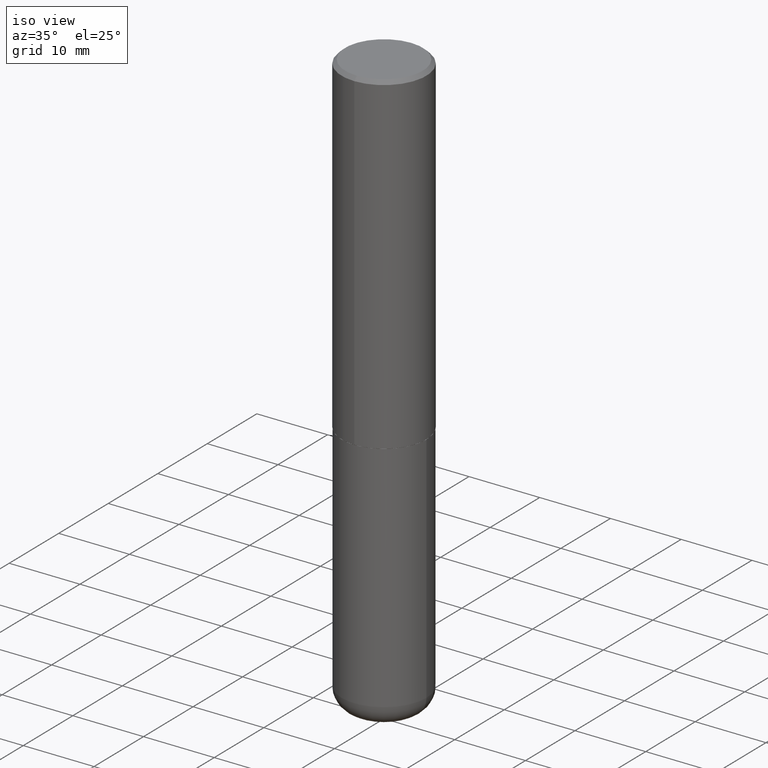
[diagram: clean part render]
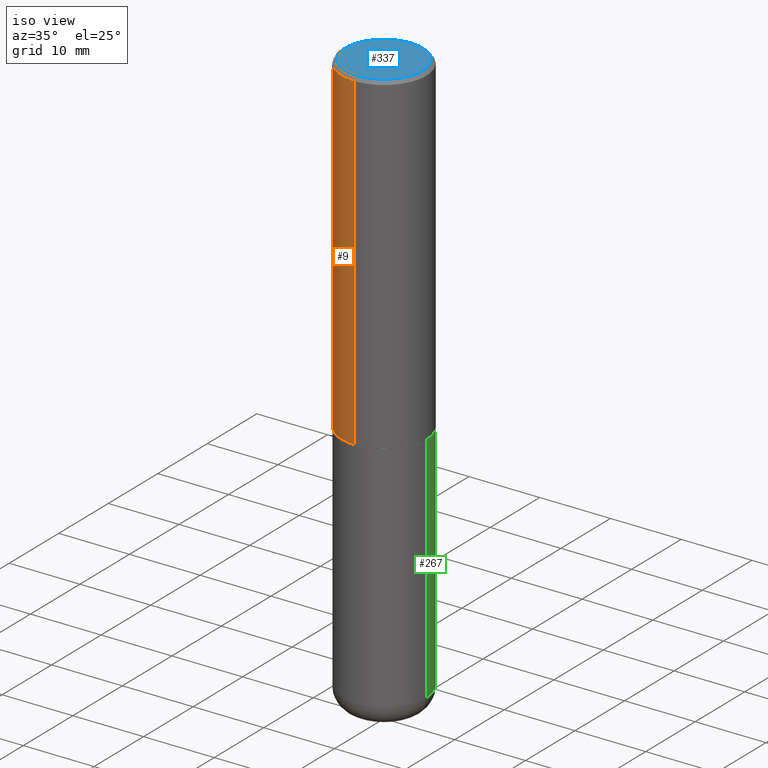
[diagram: same view with three faces highlighted in distinct colors, each labeled with its STEP entity id]
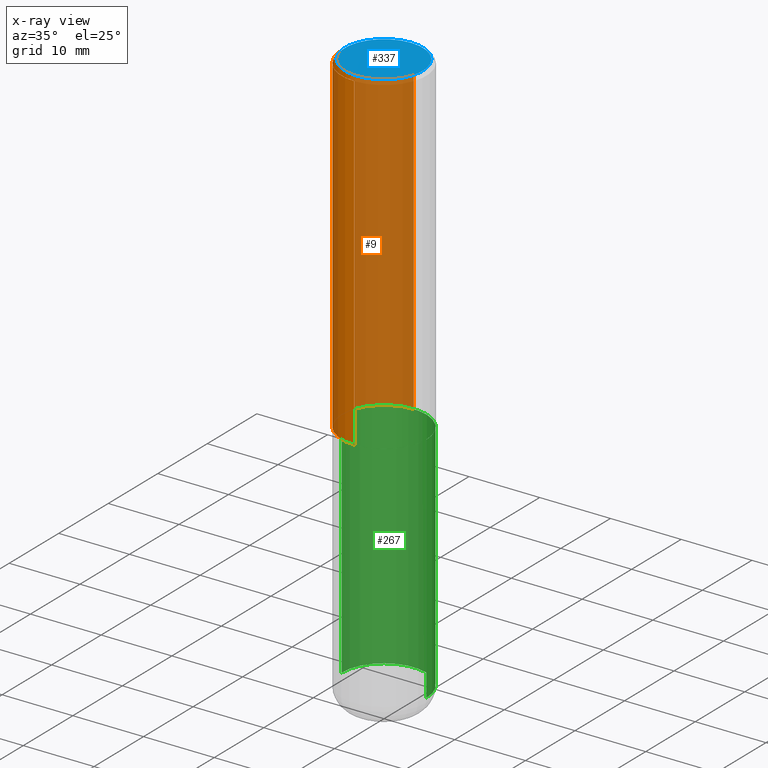
[diagram: x-ray of the same camera — body ghosted, the three highlighted faces saturated]
A machine part, iso view with three faces highlighted in distinct colors.
The next image is the same camera in x-ray (body ghosted, the three faces saturated) — at least one of them is partly hidden behind the body in this view.
Their STEP definitions:

[orange] entity #9 — the highlighted cylindrical surface (partial cylindrical patch) has radius 5.9995 mm, axis along (-0, 0, 1).
#9 = ADVANCED_FACE ( 'NONE', ( #106 ), #69, .T. ) ;
#13 = DIRECTION ( 'NONE',  ( -2.445371925614294233E-29, 3.491620077334691546E-15, 1.000000000000000000 ) ) ;
#17 = CARTESIAN_POINT ( 'NONE',  ( 1.678301941865357183E-15, 0.2362000000000001043, -8.247206622664545710E-16 ) ) ;
#23 = AXIS2_PLACEMENT_3D ( 'NONE', #360, #206, #80 ) ;
#46 = DIRECTION ( 'NONE',  ( -6.982962677686265922E-15, -1.000000000000000000, 3.487819265831411744E-15 ) ) ;
#52 = EDGE_CURVE ( 'NONE', #122, #408, #169, .T. ) ;
#58 = VERTEX_POINT ( 'NONE', #365 ) ;
#69 = CYLINDRICAL_SURFACE ( 'NONE', #229, 0.2362000000000001043 ) ;
#80 = DIRECTION ( 'NONE',  ( -6.982962677686265133E-15, -1.000000000000000000, 3.469747663417773847E-15 ) ) ;
#85 = CARTESIAN_POINT ( 'NONE',  ( 1.678301941865380454E-15, 0.2361999999999937760, -1.849400000000001043 ) ) ;
#104 = EDGE_CURVE ( 'NONE', #408, #58, #312, .T. ) ;
#106 = FACE_OUTER_BOUND ( 'NONE', #126, .T. ) ;
#122 = VERTEX_POINT ( 'NONE', #85 ) ;
#126 = EDGE_LOOP ( 'NONE', ( #192, #317, #340, #188 ) ) ;
#135 = VECTOR ( 'NONE', #332, 39.37007874015748143 ) ;
#144 = CARTESIAN_POINT ( 'NONE',  ( 1.649375784469496525E-15, 0.2361999999999999378, -0.02000000000000087472 ) ) ;
#148 = DIRECTION ( 'NONE',  ( -2.445371925614294233E-29, 3.491620077334691546E-15, 1.000000000000000000 ) ) ;
#155 = EDGE_CURVE ( 'NONE', #219, #58, #368, .T. ) ;
#169 = LINE ( 'NONE', #17, #135 ) ;
#188 = ORIENTED_EDGE ( 'NONE', *, *, #104, .F. ) ;
#191 = CARTESIAN_POINT ( 'NONE',  ( -1.649375784469452349E-15, -0.2362000000000066546, -1.849399999999999489 ) ) ;
#192 = ORIENTED_EDGE ( 'NONE', *, *, #52, .F. ) ;
#196 = DIRECTION ( 'NONE',  ( -2.445371925614294233E-29, 3.491620077334691546E-15, 1.000000000000000000 ) ) ;
#206 = DIRECTION ( 'NONE',  ( -2.445371925614294233E-29, 3.491620077334691546E-15, 1.000000000000000000 ) ) ;
#219 = VERTEX_POINT ( 'NONE', #191 ) ;
#229 = AXIS2_PLACEMENT_3D ( 'NONE', #268, #196, #382 ) ;
#265 = VECTOR ( 'NONE', #13, 39.37007874015748143 ) ;
#268 = CARTESIAN_POINT ( 'NONE',  ( 0.000000000000000000, 0.000000000000000000, 0.000000000000000000 ) ) ;
#270 = CARTESIAN_POINT ( 'NONE',  ( 4.890743851228601113E-31, -6.983240154669400497E-17, -0.02000000000000005246 ) ) ;
#286 = EDGE_CURVE ( 'NONE', #122, #219, #313, .T. ) ;
#312 = CIRCLE ( 'NONE', #417, 0.2361999999999999933 ) ;
#313 = CIRCLE ( 'NONE', #23, 0.2362000000000002153 ) ;
#317 = ORIENTED_EDGE ( 'NONE', *, *, #286, .T. ) ;
#332 = DIRECTION ( 'NONE',  ( -2.445371925614294233E-29, 3.491620077334691546E-15, 1.000000000000000000 ) ) ;
#334 = CARTESIAN_POINT ( 'NONE',  ( -1.649375784469496722E-15, -0.2362000000000001043, 8.247206622664545710E-16 ) ) ;
#340 = ORIENTED_EDGE ( 'NONE', *, *, #155, .T. ) ;
#360 = CARTESIAN_POINT ( 'NONE',  ( 4.522470839231075964E-29, -6.457402171022779437E-15, -1.849400000000000155 ) ) ;
#365 = CARTESIAN_POINT ( 'NONE',  ( -1.620449627073635079E-15, -0.2362000000000000766, -0.01999999999999922673 ) ) ;
#368 = LINE ( 'NONE', #334, #265 ) ;
#382 = DIRECTION ( 'NONE',  ( -6.982962677686265922E-15, -1.000000000000000000, 3.491620077334691941E-15 ) ) ;
#408 = VERTEX_POINT ( 'NONE', #144 ) ;
#417 = AXIS2_PLACEMENT_3D ( 'NONE', #270, #148, #46 ) ;

[blue] entity #337 — the highlighted planar face has unit normal (0, -0, -1).
#18 = EDGE_CURVE ( 'NONE', #280, #138, #323, .T. ) ;
#21 = CARTESIAN_POINT ( 'NONE',  ( -8.038070963430480451E-45, 1.147714573189292330E-30, 3.287054569996039822E-16 ) ) ;
#28 = DIRECTION ( 'NONE',  ( -6.982962677686265922E-15, -1.000000000000000000, 3.491620077334691152E-15 ) ) ;
#44 = AXIS2_PLACEMENT_3D ( 'NONE', #21, #342, #28 ) ;
#67 = DIRECTION ( 'NONE',  ( -2.445371925614294233E-29, 3.491620077334691546E-15, 1.000000000000000000 ) ) ;
#73 = AXIS2_PLACEMENT_3D ( 'NONE', #108, #358, #257 ) ;
#87 = ORIENTED_EDGE ( 'NONE', *, *, #348, .T. ) ;
#98 = EDGE_LOOP ( 'NONE', ( #282, #87 ) ) ;
#99 = CARTESIAN_POINT ( 'NONE',  ( -8.038070963430480451E-45, 1.147714573189292330E-30, 3.287054569996039822E-16 ) ) ;
#108 = CARTESIAN_POINT ( 'NONE',  ( 1.509716530915768154E-15, 0.2161999999999996425, -5.905355322199570835E-16 ) ) ;
#119 = CARTESIAN_POINT ( 'NONE',  ( -1.551844647095918761E-15, -0.2161999999999996425, 1.083593717719362934E-15 ) ) ;
#138 = VERTEX_POINT ( 'NONE', #119 ) ;
#257 = DIRECTION ( 'NONE',  ( 6.982962677686265922E-15, 1.000000000000000000, -3.491620077334691546E-15 ) ) ;
#269 = CARTESIAN_POINT ( 'NONE',  ( 1.579546157692632438E-15, 0.2161999999999996425, -4.261828037201549199E-16 ) ) ;
#280 = VERTEX_POINT ( 'NONE', #269 ) ;
#282 = ORIENTED_EDGE ( 'NONE', *, *, #18, .T. ) ;
#299 = FACE_OUTER_BOUND ( 'NONE', #98, .T. ) ;
#323 = CIRCLE ( 'NONE', #384, 0.2161999999999996425 ) ;
#325 = DIRECTION ( 'NONE',  ( -6.982962677686265922E-15, -1.000000000000000000, 3.491620077334691152E-15 ) ) ;
#337 = ADVANCED_FACE ( 'NONE', ( #299 ), #392, .F. ) ;
#342 = DIRECTION ( 'NONE',  ( -2.445371925614294233E-29, 3.491620077334691546E-15, 1.000000000000000000 ) ) ;
#348 = EDGE_CURVE ( 'NONE', #138, #280, #357, .T. ) ;
#357 = CIRCLE ( 'NONE', #44, 0.2161999999999996425 ) ;
#358 = DIRECTION ( 'NONE',  ( 2.445371925614293953E-29, -3.491620077334691546E-15, -1.000000000000000000 ) ) ;
#384 = AXIS2_PLACEMENT_3D ( 'NONE', #99, #67, #325 ) ;
#392 = PLANE ( 'NONE',  #73 ) ;

[green] entity #267 — the highlighted cylindrical surface (partial cylindrical patch) has radius 5.9995 mm, axis along (-0, 0, 1).
#16 = AXIS2_PLACEMENT_3D ( 'NONE', #177, #405, #19 ) ;
#19 = DIRECTION ( 'NONE',  ( 1.000000000000000000, -6.982962677686269077E-15, 0.000000000000000000 ) ) ;
#29 = ORIENTED_EDGE ( 'NONE', *, *, #198, .F. ) ;
#62 = DIRECTION ( 'NONE',  ( -2.445468806185136877E-29, 3.491481338843145188E-15, 1.000000000000000000 ) ) ;
#77 = DIRECTION ( 'NONE',  ( 1.000000000000000000, -6.982962677686266711E-15, 4.876176775795936353E-29 ) ) ;
#91 = CARTESIAN_POINT ( 'NONE',  ( 0.000000000000000000, 0.000000000000000000, 0.000000000000000000 ) ) ;
#96 = EDGE_CURVE ( 'NONE', #230, #128, #207, .T. ) ;
#97 = CARTESIAN_POINT ( 'NONE',  ( 7.702248551960706711E-29, -1.099676962482037231E-14, -3.149600000000000399 ) ) ;
#101 = CIRCLE ( 'NONE', #379, 0.2362000000000000210 ) ;
#107 = FACE_OUTER_BOUND ( 'NONE', #412, .T. ) ;
#117 = LINE ( 'NONE', #245, #353 ) ;
#123 = DIRECTION ( 'NONE',  ( 1.000000000000000000, -6.982962677686264344E-15, 0.000000000000000000 ) ) ;
#128 = VERTEX_POINT ( 'NONE', #243 ) ;
#160 = ORIENTED_EDGE ( 'NONE', *, *, #369, .F. ) ;
#163 = CARTESIAN_POINT ( 'NONE',  ( 0.2361999999999999933, -8.110012853864854101E-15, -1.850400000000000267 ) ) ;
#170 = DIRECTION ( 'NONE',  ( -2.445468806185136597E-29, 3.491481338843145583E-15, 1.000000000000000000 ) ) ;
#175 = CARTESIAN_POINT ( 'NONE',  ( 0.2361999999999998823, -1.264614540928986883E-14, -3.149600000000000399 ) ) ;
#177 = CARTESIAN_POINT ( 'NONE',  ( 4.525095478964977394E-29, -6.460637069395357576E-15, -1.850400000000000267 ) ) ;
#178 = DIRECTION ( 'NONE',  ( -2.445468806185136877E-29, 3.491481338843145188E-15, 1.000000000000000000 ) ) ;
#179 = CYLINDRICAL_SURFACE ( 'NONE', #363, 0.2361999999999999933 ) ;
#187 = VERTEX_POINT ( 'NONE', #175 ) ;
#198 = EDGE_CURVE ( 'NONE', #187, #258, #117, .T. ) ;
#203 = VECTOR ( 'NONE', #178, 39.37007874015748143 ) ;
#207 = LINE ( 'NONE', #331, #203 ) ;
#221 = CIRCLE ( 'NONE', #16, 0.2361999999999999933 ) ;
#230 = VERTEX_POINT ( 'NONE', #381 ) ;
#232 = EDGE_CURVE ( 'NONE', #187, #230, #101, .T. ) ;
#243 = CARTESIAN_POINT ( 'NONE',  ( -0.2361999999999999933, -7.050401405242508548E-15, -1.850400000000000267 ) ) ;
#245 = CARTESIAN_POINT ( 'NONE',  ( 0.2361999999999999933, -1.649375784469496131E-15, 1.151752954443000088E-29 ) ) ;
#258 = VERTEX_POINT ( 'NONE', #163 ) ;
#267 = ADVANCED_FACE ( 'NONE', ( #107 ), #179, .T. ) ;
#319 = ORIENTED_EDGE ( 'NONE', *, *, #232, .T. ) ;
#331 = CARTESIAN_POINT ( 'NONE',  ( -0.2361999999999999933, 1.678301941865356591E-15, -1.161852468318208757E-29 ) ) ;
#350 = DIRECTION ( 'NONE',  ( -2.445468806185136597E-29, 3.491481338843145583E-15, 1.000000000000000000 ) ) ;
#353 = VECTOR ( 'NONE', #62, 39.37007874015748143 ) ;
#363 = AXIS2_PLACEMENT_3D ( 'NONE', #91, #170, #77 ) ;
#369 = EDGE_CURVE ( 'NONE', #258, #128, #221, .T. ) ;
#372 = ORIENTED_EDGE ( 'NONE', *, *, #96, .T. ) ;
#379 = AXIS2_PLACEMENT_3D ( 'NONE', #97, #350, #123 ) ;
#381 = CARTESIAN_POINT ( 'NONE',  ( -0.2361999999999998823, -9.318467682955017493E-15, -3.149600000000000399 ) ) ;
#405 = DIRECTION ( 'NONE',  ( -2.445468806185136597E-29, 3.491481338843145583E-15, 1.000000000000000000 ) ) ;
#412 = EDGE_LOOP ( 'NONE', ( #319, #372, #160, #29 ) ) ;